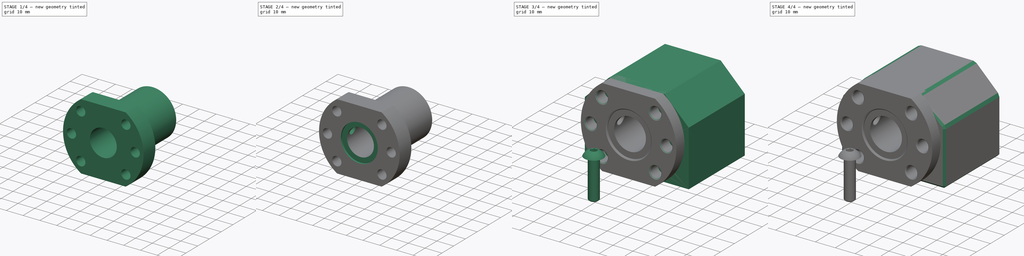
[diagram: build sequence overview — one tinted view per stage of 4, left to right]
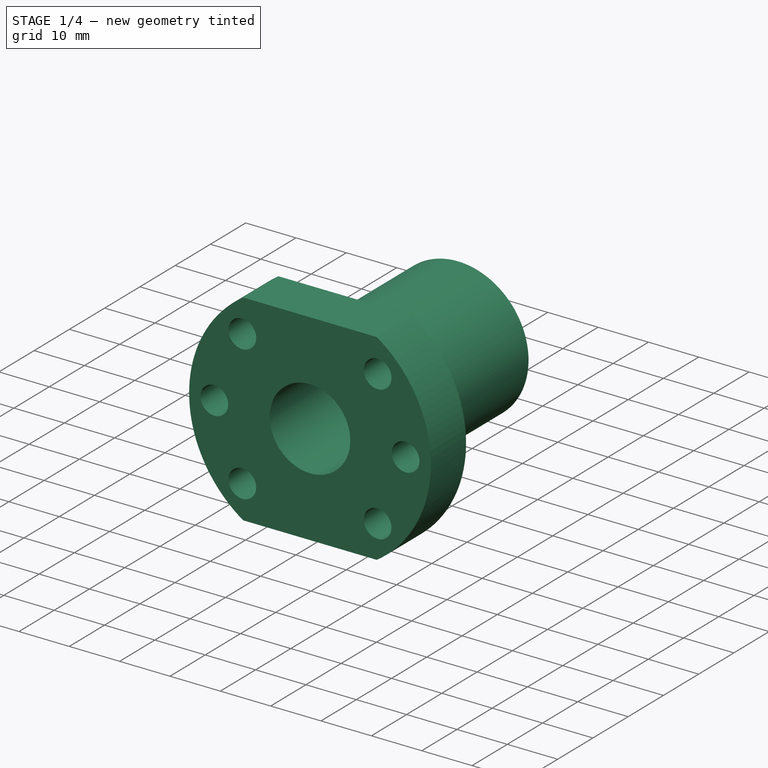
[diagram: stage 1 of 4 — iso view after this stage's code; geometry added in this stage tinted green]
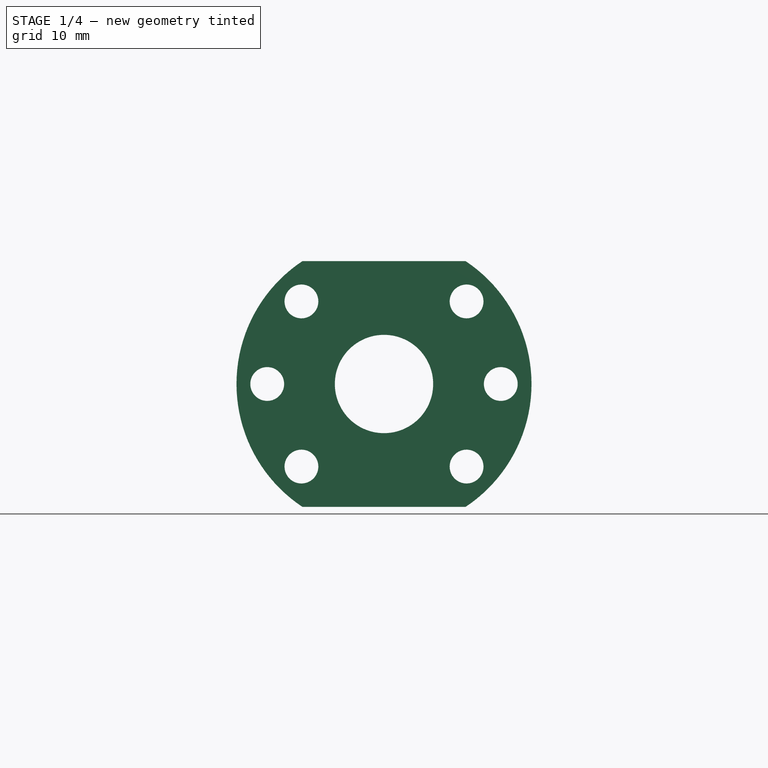
[diagram: stage 1 of 4 — front view after this stage's code; geometry added in this stage tinted green]
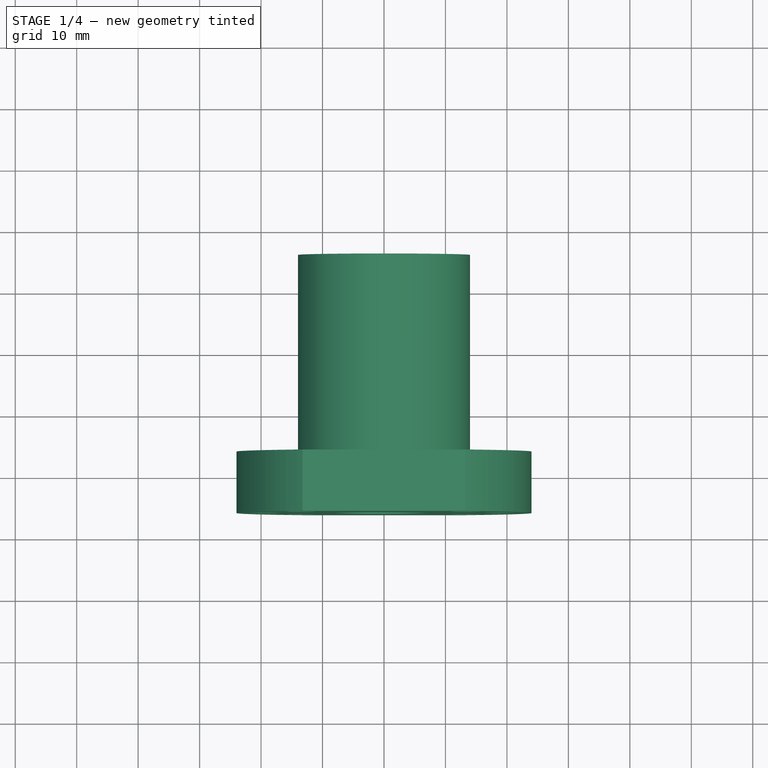
[diagram: stage 1 of 4 — top view after this stage's code; geometry added in this stage tinted green]
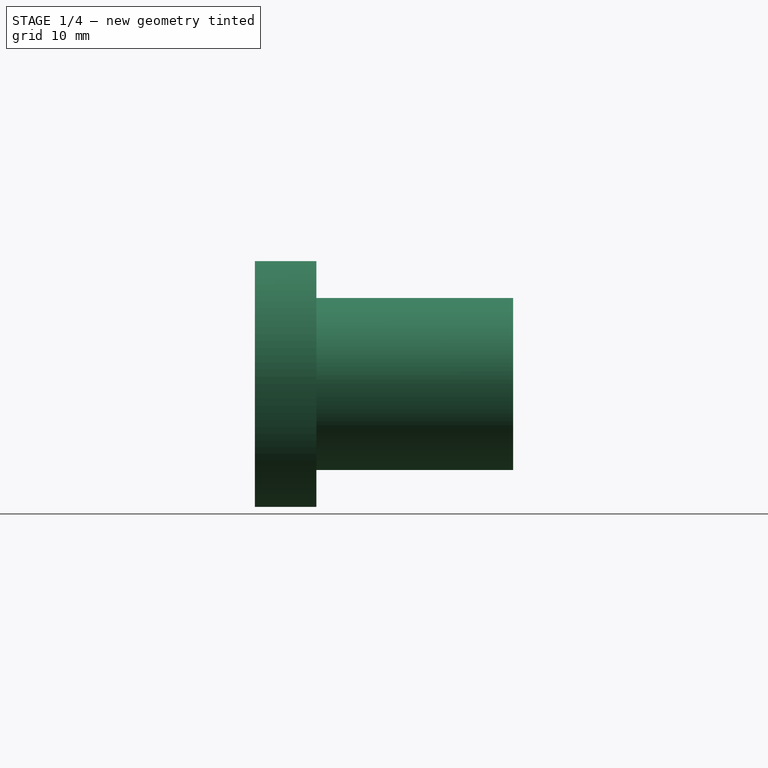
[diagram: stage 1 of 4 — right view after this stage's code; geometry added in this stage tinted green]
FCSTD DOCUMENT  (FreeCAD 2021.614R24301 +3747 (Git))
Label: BallNut
License: Creative Commons Attribution
LicenseURL: http://creativecommons.org/licenses/by/4.0/
objects: App::FeaturePython×25, Part::FeaturePython×22, Sketcher::SketchObject×9, PartDesign::Pocket×6, App::LinkElement×6, PartDesign::Pad×3, App::Link×3, PartDesign::Chamfer×2, PartDesign::Body×2, PartDesign::Plane×1, PartDesign::Line×1, App::DocumentObjectGroup×1
note: 67 computed .brp shape members not serialized (recipe doc carries the construction recipe); baked Part::Feature solids carry a one-line shape summary decoded from their .brp

FEATURE [Sketcher::SketchObject] Sketch003
  FullyConstrained = true
  MapMode = 5
  Placement = pos=(0,0,0) rot=(1,0,0;1.5708rad)
  Support = -> [XZ_Plane001]
  sketch-geometry (1):
    g0: Circle CenterX=0 CenterY=0 CenterZ=0 NormalX=0 NormalY=0 NormalZ=1 AngleXU=0 Radius=14
  constraints (2):
    c: Coincident(g0,g-1)
    c: Diameter(g0) = 28
FEATURE [PartDesign::Pad] Pad001
  ClaimChildren = false
  Direction = (1,1,1)
  Fit = 0
  FitJoin = 0
  InnerFit = 0
  InnerFitJoin = 0
  InnerTaperAngle = 0
  InnerTaperAngleRev = 0
  Length = 32
  Length2 = 100
  Linearize = true
  Midplane = true
  NewSolid = false
  Placement = pos=(0,0,0) rot=(1,0,0;1.5708rad)
  Profile = -> Sketch003
  Refine = true
  Suppress = false
  Type = 0
FEATURE [Sketcher::SketchObject] Sketch004
  FullyConstrained = true
  MapMode = 5
  Placement = pos=(0,-16,3.5e-15) rot=(1,0,0;1.5708rad)
  Support = -> [Pad001]
  sketch-geometry (12):
    g0: ArcOfCircle CenterX=0 CenterY=0 CenterZ=0 NormalX=0 NormalY=0 NormalZ=1 AngleXU=0 Radius=24 StartAngle=2.15648 EndAngle=4.1267
    g1: Circle [constr] CenterX=0 CenterY=0 CenterZ=0 NormalX=0 NormalY=0 NormalZ=1 AngleXU=0 Radius=19
    g2: LineSegment StartX=-13.2665 StartY=20 StartZ=0 EndX=13.2665 EndY=20 EndZ=0
    g3: LineSegment StartX=-13.2665 StartY=-20 StartZ=0 EndX=13.2665 EndY=-20 EndZ=0
    g4: ArcOfCircle CenterX=0 CenterY=0 CenterZ=0 NormalX=0 NormalY=0 NormalZ=1 AngleXU=0 Radius=24 StartAngle=5.29807 EndAngle=7.2683
    g5: Circle CenterX=-19 CenterY=0 CenterZ=0 NormalX=0 NormalY=0 NormalZ=1 AngleXU=0 Radius=2.75
    g6: Circle CenterX=-13.435 CenterY=13.435 CenterZ=0 NormalX=0 NormalY=0 NormalZ=1 AngleXU=0 Radius=2.75
    g7: Circle CenterX=13.435 CenterY=13.435 CenterZ=0 NormalX=0 NormalY=0 NormalZ=1 AngleXU=0 Radius=2.75
    g8: Circle CenterX=19 CenterY=0 CenterZ=0 NormalX=0 NormalY=0 NormalZ=1 AngleXU=0 Radius=2.75
    g9: Circle CenterX=13.435 CenterY=-13.435 CenterZ=0 NormalX=0 NormalY=0 NormalZ=1 AngleXU=0 Radius=2.75
    g10: Circle CenterX=-13.435 CenterY=-13.435 CenterZ=0 NormalX=0 NormalY=0 NormalZ=1 AngleXU=0 Radius=2.75
    g11: LineSegment [constr] StartX=0 StartY=0 StartZ=0 EndX=13.435 EndY=13.435 EndZ=0
  constraints (34):
    c: Coincident(g0,g-1)
    c: Coincident(g1,g0)
    c: Diameter(g1) = 38
    c: Diameter(g0) = 48
    c: Horizontal(g2)
    c: Horizontal(g3)
    c: Symmetric(g3,g2,g0)
    c: DistanceY(g3,g2) = 40
    c: Coincident(g0,g2)
    c: Coincident(g4,g2)
    c: Equal(g0,g4)
    c: Coincident(g0,g3)
    c: PointOnObject(g4,g3)
    c: Coincident(g0,g4)
    c: PointOnObject(g5,g1)
    c: PointOnObject(g6,g1)
    c: PointOnObject(g7,g1)
    c: PointOnObject(g8,g1)
    c: PointOnObject(g9,g1)
    c: PointOnObject(g8,g-1)
    c: PointOnObject(g5,g-1)
    c: PointOnObject(g10,g1)
    c: Vertical(g10,g6)
    c: Vertical(g7,g9)
    c: Horizontal(g7,g6)
    c: Equal(g7,g8)
    c: Equal(g8,g9)
    c: Equal(g9,g6)
    c: Equal(g6,g5)
    c: Equal(g5,g10)
    c: Diameter(g6) = 5.5
    c: Coincident(g11,g0)
    c: Coincident(g11,g7)
    c: Angle(g-1,g11) = 0.785398
FEATURE [PartDesign::Pad] Pad002
  BaseFeature = -> Pad001
  ClaimChildren = false
  Direction = (1,1,1)
  Fit = 0
  FitJoin = 0
  InnerFit = 0
  InnerFitJoin = 0
  InnerTaperAngle = 0
  InnerTaperAngleRev = 0
  Length = 10
  Length2 = 100
  Linearize = true
  NewSolid = false
  Placement = pos=(0,0,0) rot=(1,0,0;1.5708rad)
  Profile = -> Sketch004
  Refine = true
  Suppress = false
  Type = 0
FEATURE [Sketcher::SketchObject] Sketch005
  FullyConstrained = true
  MapMode = 5
  Placement = pos=(0,-26,2.03e-14) rot=(1,0,0;1.5708rad)
  Support = -> [Pad002]
  sketch-geometry (1):
    g0: Circle CenterX=0 CenterY=0 CenterZ=0 NormalX=0 NormalY=0 NormalZ=1 AngleXU=0 Radius=8
  constraints (2):
    c: Coincident(g0,g-1)
    c: Diameter(g0) = 16
FEATURE [PartDesign::Pocket] Pocket002
  BaseFeature = -> Pad002
  ClaimChildren = false
  Fit = 0
  FitJoin = 0
  InnerFit = 0
  InnerFitJoin = 0
  InnerTaperAngle = 0
  InnerTaperAngleRev = 0
  Length = 5
  Length2 = 100
  Linearize = true
  NewSolid = false
  Placement = pos=(0,0,0) rot=(1,0,0;1.5708rad)
  Profile = -> Sketch005
  Refine = true
  Suppress = false
  Type = 1
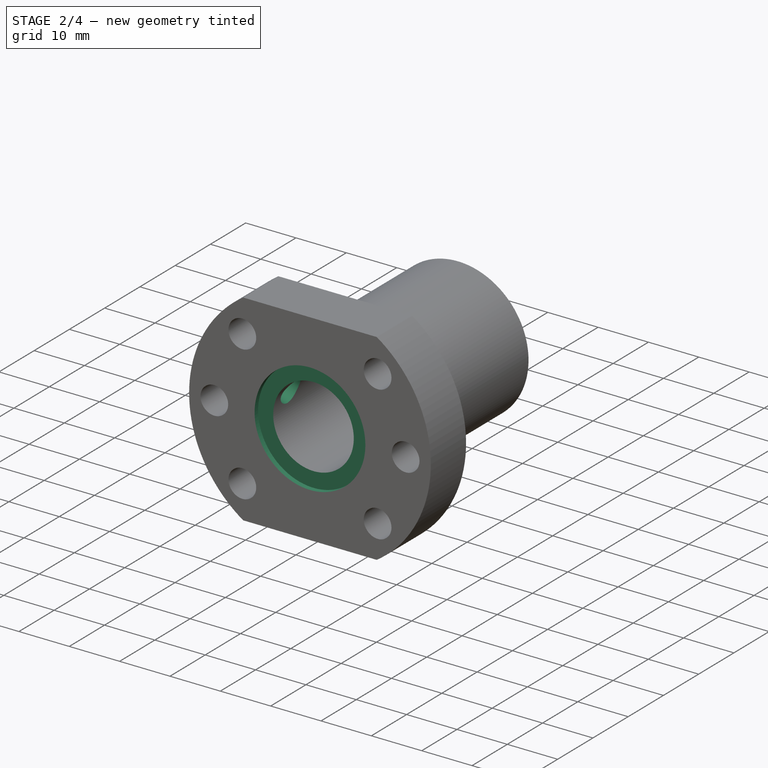
[diagram: stage 2 of 4 — iso view after this stage's code; geometry added in this stage tinted green]
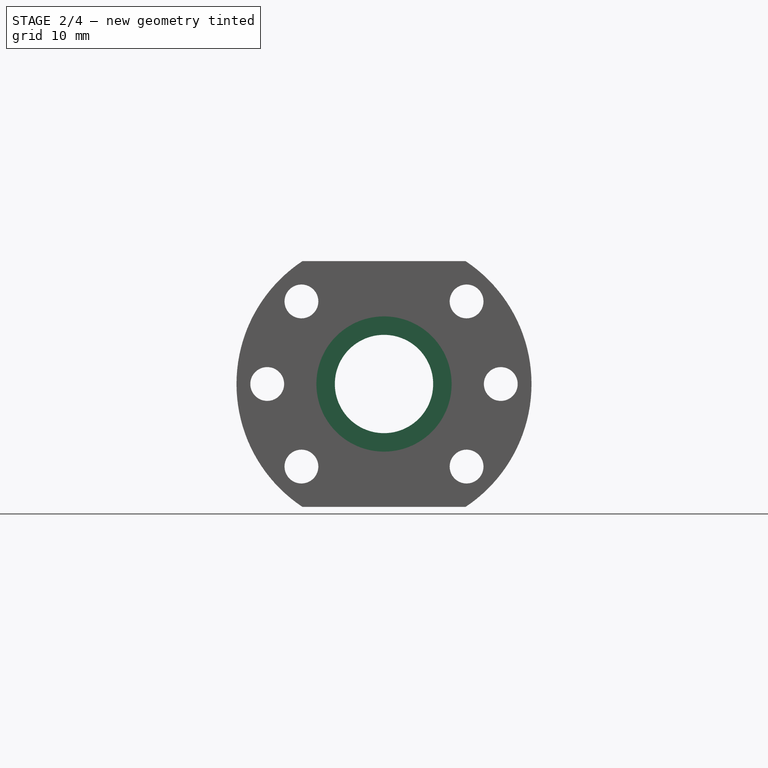
[diagram: stage 2 of 4 — front view after this stage's code; geometry added in this stage tinted green]
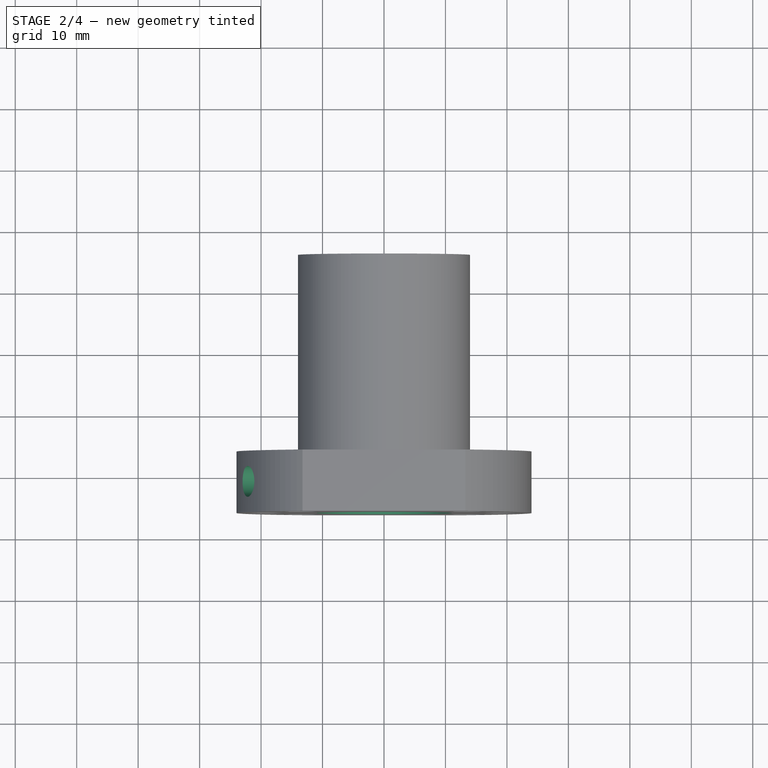
[diagram: stage 2 of 4 — top view after this stage's code; geometry added in this stage tinted green]
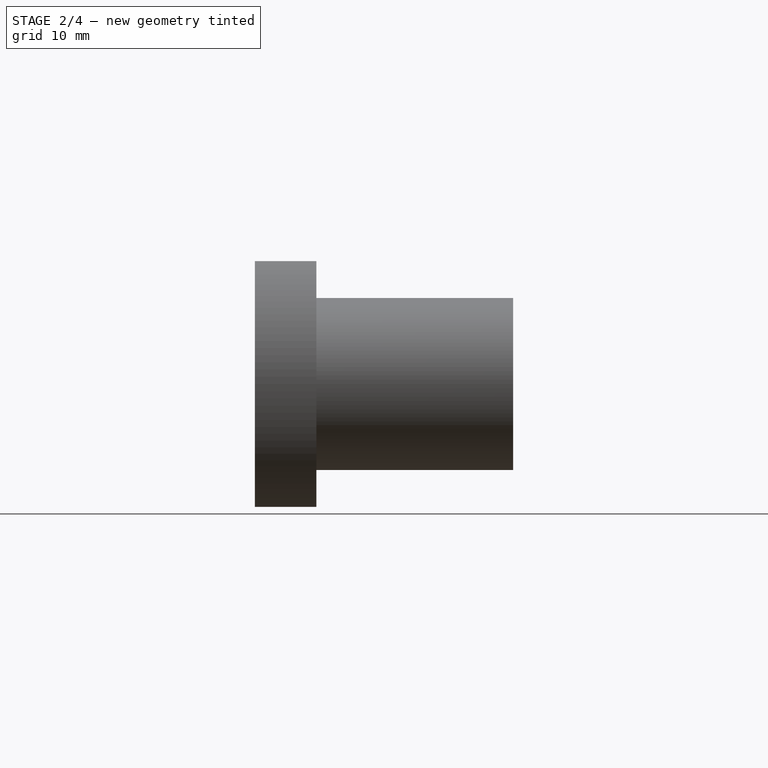
[diagram: stage 2 of 4 — right view after this stage's code; geometry added in this stage tinted green]
FEATURE [Sketcher::SketchObject] Sketch006
  FullyConstrained = true
  MapMode = 5
  Placement = pos=(0,-26,2.03e-14) rot=(1,0,0;1.5708rad)
  Support = -> [Pocket002]
  sketch-geometry (1):
    g0: Circle CenterX=0 CenterY=0 CenterZ=0 NormalX=0 NormalY=0 NormalZ=1 AngleXU=0 Radius=11
  constraints (2):
    c: Coincident(g0,g-1)
    c: Diameter(g0) = 22
FEATURE [PartDesign::Pocket] Pocket003
  BaseFeature = -> Pocket002
  ClaimChildren = false
  Fit = 0
  FitJoin = 0
  InnerFit = 0
  InnerFitJoin = 0
  InnerTaperAngle = 0
  InnerTaperAngleRev = 0
  Length = 1
  Length2 = 100
  Linearize = true
  NewSolid = false
  Placement = pos=(0,0,0) rot=(1,0,0;1.5708rad)
  Profile = -> Sketch006
  Refine = true
  Suppress = false
  Type = 0
FEATURE [Sketcher::SketchObject] Sketch007
  FullyConstrained = true
  MapMode = 5
  Placement = pos=(0,16,-3.5e-15) rot=(-1,0,0;1.5708rad)
  Support = -> [Pocket003]
  sketch-geometry (1):
    g0: Circle CenterX=0 CenterY=0 CenterZ=0 NormalX=0 NormalY=0 NormalZ=1 AngleXU=0 Radius=11
  constraints (2):
    c: Coincident(g0,g-1)
    c: Diameter(g0) = 22
FEATURE [PartDesign::Pocket] Pocket004
  BaseFeature = -> Pocket003
  ClaimChildren = false
  Fit = 0
  FitJoin = 0
  InnerFit = 0
  InnerFitJoin = 0
  InnerTaperAngle = 0
  InnerTaperAngleRev = 0
  Length = 1
  Length2 = 100
  Linearize = true
  NewSolid = false
  Placement = pos=(0,0,0) rot=(1,0,0;1.5708rad)
  Profile = -> Sketch007
  Refine = true
  Suppress = false
  Type = 0
FEATURE [PartDesign::Plane] DatumPlane
  AttachmentOffset = pos=(0,0,0) rot=(1,0,0;0.392699rad)
  Length = 42
  MapMode = 5
  MinimumLength = 10
  MinimumWidth = 10
  Placement = pos=(0,0,0) rot=(0.639338,0.639338,0.427192;2.33414rad)
  ResizeMode = 0
  Support = -> [YZ_Plane001]
  Width = 55.324
FEATURE [Sketcher::SketchObject] Sketch008
  ExternalGeometry = -> [Pocket004]
  FullyConstrained = true
  MapMode = 5
  Placement = pos=(0,0,0) rot=(0.485653,-0.485653,-0.726831;1.88458rad)
  Support = -> [DatumPlane]
  sketch-geometry (3):
    g0: Circle CenterX=21 CenterY=0 CenterZ=0 NormalX=0 NormalY=0 NormalZ=1 AngleXU=0 Radius=2.5
    g1: LineSegment [constr] StartX=16 StartY=13.4007 StartZ=0 EndX=21 EndY=0 EndZ=0
    g2: LineSegment [constr] StartX=21 StartY=0 StartZ=0 EndX=26 EndY=13.4007 EndZ=0
  constraints (7):
    c: PointOnObject(g0,g-1)
    c: Coincident(g1,g-3)
    c: Coincident(g1,g0)
    c: Coincident(g2,g0)
    c: Coincident(g2,g-4)
    c: Equal(g2,g1)
    c: Diameter(g0) = 5
FEATURE [PartDesign::Pocket] Pocket005
  BaseFeature = -> Pocket004
  ClaimChildren = false
  Fit = 0
  FitJoin = 0
  InnerFit = 0
  InnerFitJoin = 0
  InnerTaperAngle = 0
  InnerTaperAngleRev = 0
  Length = 5
  Length2 = 100
  Linearize = true
  NewSolid = false
  Placement = pos=(0,0,0) rot=(1,0,0;1.5708rad)
  Profile = -> Sketch008
  Refine = true
  Reversed = true
  Suppress = false
  Type = 1
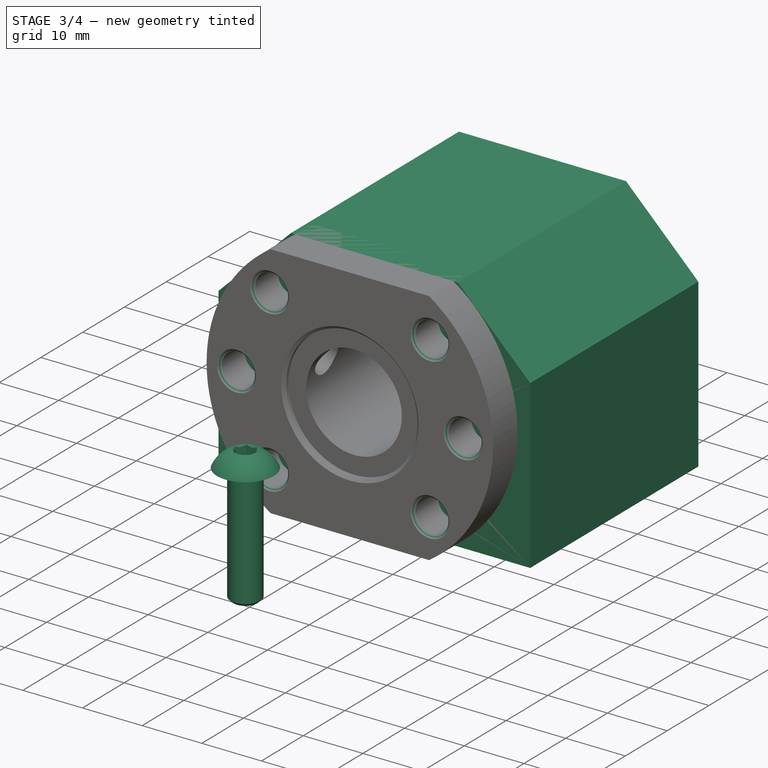
[diagram: stage 3 of 4 — iso view after this stage's code; geometry added in this stage tinted green]
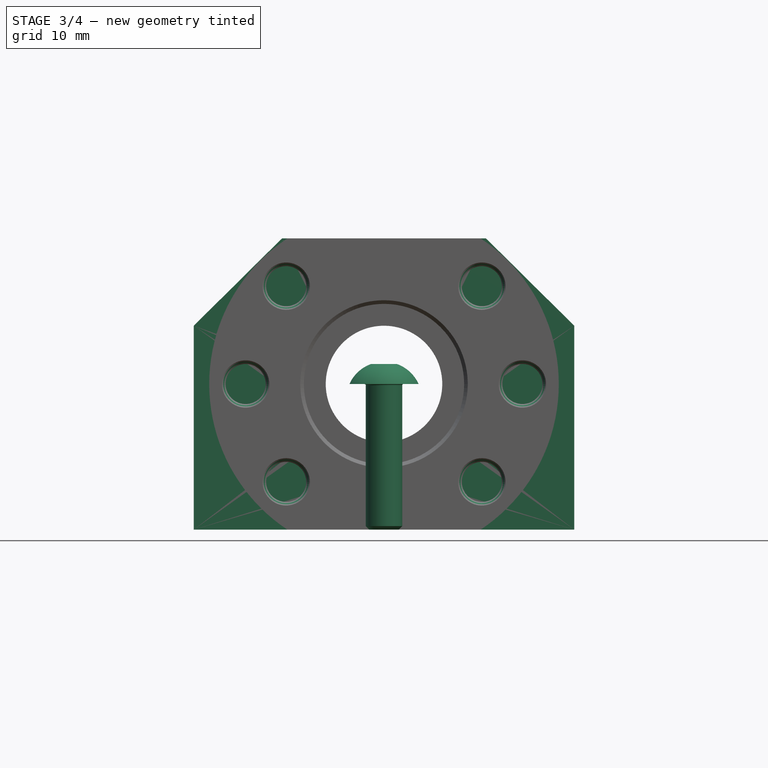
[diagram: stage 3 of 4 — front view after this stage's code; geometry added in this stage tinted green]
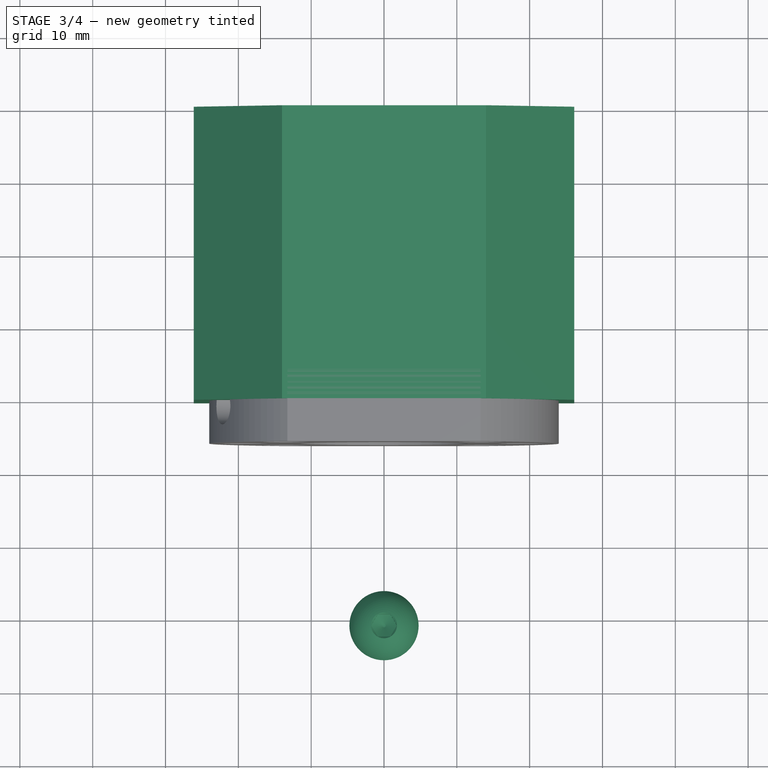
[diagram: stage 3 of 4 — top view after this stage's code; geometry added in this stage tinted green]
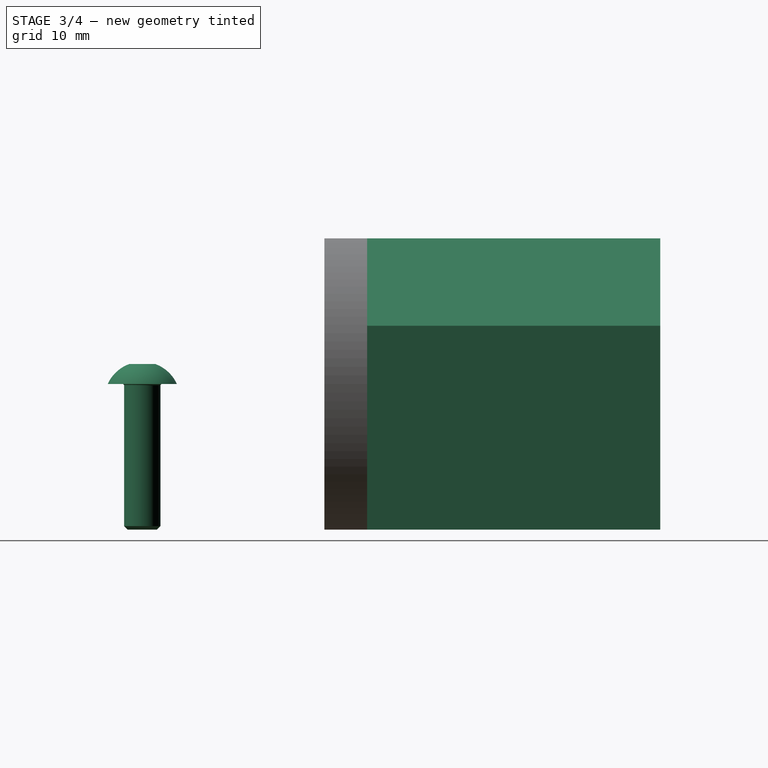
[diagram: stage 3 of 4 — right view after this stage's code; geometry added in this stage tinted green]
FEATURE [Sketcher::SketchObject] Sketch
  FullyConstrained = true
  MapMode = 5
  Placement = pos=(0,0,0) rot=(1,0,0;1.5708rad)
  Support = -> [XZ_Plane]
  sketch-geometry (9):
    g0: Circle CenterX=0 CenterY=0 CenterZ=0 NormalX=0 NormalY=0 NormalZ=1 AngleXU=0 Radius=14
    g1: LineSegment StartX=-26.125 StartY=-20 StartZ=0 EndX=26.125 EndY=-20 EndZ=0
    g2: LineSegment StartX=26.125 StartY=-20 StartZ=0 EndX=26.125 EndY=8 EndZ=0
    g3: LineSegment StartX=26.125 StartY=8 StartZ=0 EndX=14 EndY=20 EndZ=0
    g4: LineSegment StartX=14 StartY=20 StartZ=0 EndX=-14 EndY=20 EndZ=0
    g5: LineSegment StartX=-14 StartY=20 StartZ=0 EndX=-26.125 EndY=8 EndZ=0
    g6: LineSegment StartX=-26.125 StartY=8 StartZ=0 EndX=-26.125 EndY=-20 EndZ=0
    g7: GeomPoint [constr] X=0 Y=-20 Z=0
    g8: GeomPoint [constr] X=2e-16 Y=20 Z=0
  constraints (21):
    c: Coincident(g0,g-1)
    c: Horizontal(g1)
    c: Coincident(g1,g2)
    c: Vertical(g2)
    c: Coincident(g2,g3)
    c: Coincident(g3,g4)
    c: Horizontal(g4)
    c: Coincident(g4,g5)
    c: Coincident(g5,g6)
    c: Coincident(g6,g1)
    c: Vertical(g6)
    c: Horizontal(g5,g2)
    c: PointOnObject(g7,g-2)
    c: Symmetric(g4,g3,g8)
    c: Symmetric(g1,g1,g7)
    c: DistanceY(g1,g3) = 40
    c: Symmetric(g8,g7,g0)
    c: DistanceX(g1,g1) = 52.25
    c: DistanceY(g2,g2) = 28
    c: DistanceX(g4,g4) = 28
    c: Diameter(g0) = 28
FEATURE [PartDesign::Pad] Pad
  ClaimChildren = false
  Direction = (1,1,1)
  Fit = 0
  FitJoin = 0
  InnerFit = 0
  InnerFitJoin = 0
  InnerTaperAngle = 0
  InnerTaperAngleRev = 0
  Length = 40.25
  Length2 = 100
  Linearize = true
  Midplane = true
  NewSolid = false
  Placement = pos=(0,0,0) rot=(1,0,0;1.5708rad)
  Profile = -> Sketch
  Refine = true
  Suppress = false
  Type = 0
FEATURE [PartDesign::Chamfer] Chamfer001
  Angle = 45
  Base = -> Pocket005 [Edge35,Edge43,Edge24,Edge25,Edge26,Edge22,Edge21,Edge20,Edge23,Edge14,Edge16,Edge17,Edge11,Edge12,Edge13]
  BaseFeature = -> Pocket005
  ChamferType = 0
  FlipDirection = false
  NewSolid = false
  Placement = pos=(0,0,0) rot=(1,0,0;1.5708rad)
  Refine = true
  Size = 0.5
  Size2 = 1
  SupportTransform = false
  Suppress = false
FEATURE [PartDesign::Body] Body001  label="SFU1605"
  AutoGroupSolids = false
  ExportMode = 0
  Group = -> [Sketch003,Pad001,Sketch004,Pad002,Sketch005,Pocket002,Sketch006,Pocket003,Sketch007,Pocket004,DatumPlane,Sketch008,Pocket005,Chamfer001]
  Origin = -> Origin001
  Placement = pos=(0,-5,0) rot=(0,0,1;0rad)
  Tip = -> Chamfer001
  _ExportChildren = -> [Pad001,Pad002,Pocket002,Pocket003,Pocket004,DatumPlane,Pocket005,Chamfer001]
  _GroupVersion = 1
FEATURE [App::Link] Link  label="Link(SFU1605)"
  AutoLinkLabel = true
  LinkPlacement = pos=(4e-16,-5,-2.7e-15) rot=(0,0,1;0rad)
  LinkedObject = -> Body001
  Placement = pos=(4e-16,-5,-2.7e-15) rot=(0,0,1;0rad)
  SyncGroupVisibility = false
  _LinkVersion = 1
FEATURE [App::Link] Link001  label="Link001(DSG16)"
  AutoLinkLabel = true
  LinkPlacement = pos=(0,-0.875,-9.7e-15) rot=(0,0,1;0rad)
  LinkedObject = -> Body
  Placement = pos=(0,-0.875,-9.7e-15) rot=(0,0,1;0rad)
  SyncGroupVisibility = false
  _LinkVersion = 1
FEATURE [PartDesign::Line] DatumLine
  AttacherType = Attacher::AttachEngineLine
  Length = 40.25
  MapMode = 19
  MinimumLength = 10
  Placement = pos=(0,-19.125,4e-15) rot=(1,0,0;1.5708rad)
  ResizeMode = 0
  Support = -> [Chamfer]
FEATURE [PartDesign::Body] Body  label="DSG16"
  AutoGroupSolids = false
  ExportMode = 0
  Group = -> [Sketch,Pad,Sketch001,Pocket,Sketch002,Pocket001,Chamfer,DatumLine]
  Origin = -> Origin
  Tip = -> Chamfer
  _ExportChildren = -> [Pad,Pocket,Pocket001,Chamfer,DatumLine]
  _GroupVersion = 1
FEATURE [Part::FeaturePython] Screw  label="M5x20-Screw"  # Fasteners workbench fastener (typed FeaturePython)
  Placement = pos=(0,-51,0) rot=(0,0,1;0rad)
  diameter = 3
  invert = false
  length = 5
  lengthCustom = 20
  matchOuter = false
  offset = 0
  thread = false
  type = 39
FEATURE [App::DocumentObjectGroup] Group  label="Components"
  ExportMode = 1
  Group = -> [Body,Body001,Screw]
  _GroupVersion = 1
FEATURE [App::LinkElement] Link002_i0
  LinkPlacement = pos=(-13.435,20,13.435) rot=(1,0,0;1.5708rad)
  LinkedObject = -> Screw
  Placement = pos=(-13.435,20,13.435) rot=(1,0,0;1.5708rad)
  _LinkVersion = 0
FEATURE [App::LinkElement] Link002_i1
  LinkPlacement = pos=(13.435,20,13.435) rot=(1,0,0;1.5708rad)
  LinkedObject = -> Screw
  Placement = pos=(13.435,20,13.435) rot=(1,0,0;1.5708rad)
  _LinkVersion = 0
FEATURE [App::LinkElement] Link002_i2
  LinkPlacement = pos=(19,20,6.78e-14) rot=(1,0,0;1.5708rad)
  LinkedObject = -> Screw
  Placement = pos=(19,20,6.78e-14) rot=(1,0,0;1.5708rad)
  _LinkVersion = 0
FEATURE [App::LinkElement] Link002_i3
  LinkPlacement = pos=(13.435,20,-13.435) rot=(1,0,0;1.5708rad)
  LinkedObject = -> Screw
  Placement = pos=(13.435,20,-13.435) rot=(1,0,0;1.5708rad)
  _LinkVersion = 0
FEATURE [App::LinkElement] Link002_i4
  LinkPlacement = pos=(-19,20,6.78e-14) rot=(1,0,0;1.5708rad)
  LinkedObject = -> Screw
  Placement = pos=(-19,20,6.78e-14) rot=(1,0,0;1.5708rad)
  _LinkVersion = 0
FEATURE [App::LinkElement] Link002_i5
  LinkPlacement = pos=(-13.435,20,-13.435) rot=(1,0,0;1.5708rad)
  LinkedObject = -> Screw
  Placement = pos=(-13.435,20,-13.435) rot=(1,0,0;1.5708rad)
  _LinkVersion = 0
FEATURE [App::Link] Link002  label="M5x20-Screw 6ct"
  AutoLinkLabel = true
  ElementCount = 6
  ElementList = -> [Link002_i0,Link002_i1,Link002_i2,Link002_i3,Link002_i4,Link002_i5]
  LinkPlacement = pos=(0,-51,0) rot=(0,0,1;0rad)
  LinkedObject = -> Screw
  Placement = pos=(0,-51,0) rot=(0,0,1;0rad)
  SyncGroupVisibility = false
  _LinkVersion = 1
FEATURE [Part::FeaturePython] Parts  # WARN: FeaturePython — macro-defined, semantics opaque (R4)
  Group = -> [Link,Link001,Link002]
  GroupMode = 0
  _LinkVersion = 1
FEATURE [Part::FeaturePython] Assembly  label="NUT Assembly"  # WARN: FeaturePython — macro-defined, semantics opaque (R4)
  AutoRelax = true
  BuildShape = 0
  Freeze = false
  Group = -> [Constraints,Elements,Parts]
  Verbose = false
  _LinkVersion = 1
  _SolverType = 1
  _Version = 1
FEATURE [App::FeaturePython] Constraints  # WARN: FeaturePython — macro-defined, semantics opaque (R4)
  Group = -> [Constraint006,Constraint007,Constraint,Constraint008,Constraint009,Constraint010,Constraint011,Constraint012]
  _LinkVersion = 1
  _Version = 1
FEATURE [App::FeaturePython] Elements  # WARN: FeaturePython — macro-defined, semantics opaque (R4)
  Group = -> [_Element012,_Element013,_Element014,Element,Element001,Element002,Element003,_Element,_Element015,_Element016,_Element017,_Element018,_Element019,_Element020,_Element021,_Element022,_Element023,_Element024,_Element025]
  _LinkVersion = 1
FEATURE [App::FeaturePython] Constraint006  label="Attachment006"  # WARN: FeaturePython — macro-defined, semantics opaque (R4)
  Cascade = false
  Disabled = false
  Group = -> [ElementLink012,ElementLink013]
  Multiply = false
  _ConstraintType = 45
  _LinkVersion = 1
  _Parent = -> Constraints
FEATURE [App::FeaturePython] ElementLink012  label="_Element012"  # link proxy (typed FeaturePython)
  LinkTransform = true
  LinkedObject = -> _Element012
  _LinkVersion = 1
  _Parent = -> Constraint006
FEATURE [Part::FeaturePython] _Element012  # link proxy (typed FeaturePython)
  Detach = false
  LinkTransform = true
  LinkedObject = -> Link001 [Chamfer.Edge58]
  _LinkVersion = 1
  _Parent = -> Elements
FEATURE [App::FeaturePython] ElementLink013  label="Nut-mate"  # link proxy (typed FeaturePython)
  LinkTransform = true
  LinkedObject = -> _Element013
  _LinkVersion = 1
  _Parent = -> Constraint006
FEATURE [Part::FeaturePython] _Element013  label="Nut-mate"  # link proxy (typed FeaturePython)
  Detach = false
  LinkTransform = true
  LinkedObject = -> Link [Chamfer001.Edge6]
  _LinkVersion = 1
  _Parent = -> Elements
FEATURE [App::FeaturePython] Constraint007  label="Locked"  # WARN: FeaturePython — macro-defined, semantics opaque (R4)
  Disabled = false
  Group = -> [ElementLink014]
  _ConstraintType = 0
  _LinkVersion = 1
  _Parent = -> Constraints
FEATURE [App::FeaturePython] ElementLink014  label="_Element014"  # link proxy (typed FeaturePython)
  LinkTransform = true
  LinkedObject = -> _Element014
  _LinkVersion = 1
  _Parent = -> Constraint007
FEATURE [Part::FeaturePython] _Element014  # link proxy (typed FeaturePython)
  Detach = false
  LinkTransform = true
  LinkedObject = -> Link001 [Chamfer.Face1]
  _LinkVersion = 1
  _Parent = -> Elements
FEATURE [Part::FeaturePython] Element  label="gov-mate"  # link proxy (typed FeaturePython)
  Detach = false
  LinkTransform = true
  LinkedObject = -> Link001 [Chamfer.Edge7]
  _LinkVersion = 1
  _Parent = -> Elements
FEATURE [Part::FeaturePython] Element001  label="Axis"  # link proxy (typed FeaturePython)
  Detach = false
  LinkTransform = true
  LinkedObject = -> Link001 [DatumLine.]
  _LinkVersion = 1
  _Parent = -> Elements
FEATURE [Part::FeaturePython] Element002  label="gov-mate-r"  # link proxy (typed FeaturePython)
  Detach = false
  LinkTransform = true
  LinkedObject = -> Link001 [Chamfer.Edge5]
  _LinkVersion = 1
  _Parent = -> Elements
FEATURE [Part::FeaturePython] Element003  label="shim-mate"  # link proxy (typed FeaturePython)
  Detach = false
  LinkTransform = true
  LinkedObject = -> Link001 [Chamfer.Edge8]
  _LinkVersion = 1
  _Parent = -> Elements
FEATURE [App::FeaturePython] Constraint  label="Attachment"  # WARN: FeaturePython — macro-defined, semantics opaque (R4)
  Cascade = false
  Disabled = false
  Group = -> [ElementLink,ElementLink015]
  Multiply = false
  _ConstraintType = 45
  _LinkVersion = 0
  _Parent = -> Constraints
FEATURE [App::FeaturePython] ElementLink  label="_Element"  # link proxy (typed FeaturePython)
  LinkTransform = true
  LinkedObject = -> _Element
  _LinkVersion = 0
  _Parent = -> Constraint
FEATURE [Part::FeaturePython] _Element  # link proxy (typed FeaturePython)
  Detach = false
  LinkTransform = true
  LinkedObject = -> Link002 [0.Edge4]
  _LinkVersion = 0
  _Parent = -> Elements
FEATURE [App::FeaturePython] ElementLink015  label="_Element015"  # link proxy (typed FeaturePython)
  LinkTransform = true
  LinkedObject = -> _Element015
  _LinkVersion = 0
  _Parent = -> Constraint
FEATURE [Part::FeaturePython] _Element015  # link proxy (typed FeaturePython)
  Detach = false
  LinkTransform = true
  LinkedObject = -> Link [Chamfer001.Edge40]
  _LinkVersion = 0
  _Parent = -> Elements
FEATURE [App::FeaturePython] Constraint008  label="Attachment007"  # WARN: FeaturePython — macro-defined, semantics opaque (R4)
  Cascade = false
  Disabled = false
  Group = -> [ElementLink016,ElementLink017]
  Multiply = false
  _ConstraintType = 45
  _LinkVersion = 0
  _Parent = -> Constraints
FEATURE [App::FeaturePython] ElementLink016  label="_Element016"  # link proxy (typed FeaturePython)
  LinkTransform = true
  LinkedObject = -> _Element016
  _LinkVersion = 0
  _Parent = -> Constraint008
FEATURE [Part::FeaturePython] _Element016  # link proxy (typed FeaturePython)
  Detach = false
  LinkTransform = true
  LinkedObject = -> Link002 [1.Edge4]
  _LinkVersion = 0
  _Parent = -> Elements
FEATURE [App::FeaturePython] ElementLink017  label="_Element017"  # link proxy (typed FeaturePython)
  LinkTransform = true
  LinkedObject = -> _Element017
  _LinkVersion = 0
  _Parent = -> Constraint008
FEATURE [Part::FeaturePython] _Element017  # link proxy (typed FeaturePython)
  Detach = false
  LinkTransform = true
  LinkedObject = -> Link [Chamfer001.Edge39]
  _LinkVersion = 0
  _Parent = -> Elements
FEATURE [App::FeaturePython] Constraint009  label="Attachment008"  # WARN: FeaturePython — macro-defined, semantics opaque (R4)
  Cascade = false
  Disabled = false
  Group = -> [ElementLink018,ElementLink019]
  Multiply = false
  _ConstraintType = 45
  _LinkVersion = 0
  _Parent = -> Constraints
FEATURE [App::FeaturePython] ElementLink018  label="_Element018"  # link proxy (typed FeaturePython)
  LinkTransform = true
  LinkedObject = -> _Element018
  _LinkVersion = 0
  _Parent = -> Constraint009
FEATURE [Part::FeaturePython] _Element018  # link proxy (typed FeaturePython)
  Detach = false
  LinkTransform = true
  LinkedObject = -> Link002 [2.Edge4]
  _LinkVersion = 0
  _Parent = -> Elements
FEATURE [App::FeaturePython] ElementLink019  label="_Element019"  # link proxy (typed FeaturePython)
  LinkTransform = true
  LinkedObject = -> _Element019
  _LinkVersion = 0
  _Parent = -> Constraint009
FEATURE [Part::FeaturePython] _Element019  # link proxy (typed FeaturePython)
  Detach = false
  LinkTransform = true
  LinkedObject = -> Link [Chamfer001.Edge38]
  _LinkVersion = 0
  _Parent = -> Elements
FEATURE [App::FeaturePython] Constraint010  label="Attachment009"  # WARN: FeaturePython — macro-defined, semantics opaque (R4)
  Cascade = false
  Disabled = false
  Group = -> [ElementLink020,ElementLink021]
  Multiply = false
  _ConstraintType = 45
  _LinkVersion = 0
  _Parent = -> Constraints
FEATURE [App::FeaturePython] ElementLink020  label="_Element020"  # link proxy (typed FeaturePython)
  LinkTransform = true
  LinkedObject = -> _Element020
  _LinkVersion = 0
  _Parent = -> Constraint010
FEATURE [Part::FeaturePython] _Element020  # link proxy (typed FeaturePython)
  Detach = false
  LinkTransform = true
  LinkedObject = -> Link002 [3.Edge4]
  _LinkVersion = 0
  _Parent = -> Elements
FEATURE [App::FeaturePython] ElementLink021  label="_Element021"  # link proxy (typed FeaturePython)
  LinkTransform = true
  LinkedObject = -> _Element021
  _LinkVersion = 0
  _Parent = -> Constraint010
FEATURE [Part::FeaturePython] _Element021  # link proxy (typed FeaturePython)
  Detach = false
  LinkTransform = true
  LinkedObject = -> Link [Chamfer001.Edge43]
  _LinkVersion = 0
  _Parent = -> Elements
FEATURE [App::FeaturePython] Constraint011  label="Attachment010"  # WARN: FeaturePython — macro-defined, semantics opaque (R4)
  Cascade = false
  Disabled = false
  Group = -> [ElementLink022,ElementLink023]
  Multiply = false
  _ConstraintType = 45
  _LinkVersion = 0
  _Parent = -> Constraints
FEATURE [App::FeaturePython] ElementLink022  label="_Element022"  # link proxy (typed FeaturePython)
  LinkTransform = true
  LinkedObject = -> _Element022
  _LinkVersion = 0
  _Parent = -> Constraint011
FEATURE [Part::FeaturePython] _Element022  # link proxy (typed FeaturePython)
  Detach = false
  LinkTransform = true
  LinkedObject = -> Link002 [4.Edge4]
  _LinkVersion = 0
  _Parent = -> Elements
FEATURE [App::FeaturePython] ElementLink023  label="_Element023"  # link proxy (typed FeaturePython)
  LinkTransform = true
  LinkedObject = -> _Element023
  _LinkVersion = 0
  _Parent = -> Constraint011
FEATURE [Part::FeaturePython] _Element023  # link proxy (typed FeaturePython)
  Detach = false
  LinkTransform = true
  LinkedObject = -> Link [Chamfer001.Edge41]
  _LinkVersion = 0
  _Parent = -> Elements
FEATURE [App::FeaturePython] Constraint012  label="Attachment011"  # WARN: FeaturePython — macro-defined, semantics opaque (R4)
  Cascade = false
  Disabled = false
  Group = -> [ElementLink024,ElementLink025]
  Multiply = false
  _ConstraintType = 45
  _LinkVersion = 0
  _Parent = -> Constraints
FEATURE [App::FeaturePython] ElementLink024  label="_Element024"  # link proxy (typed FeaturePython)
  LinkTransform = true
  LinkedObject = -> _Element024
  _LinkVersion = 0
  _Parent = -> Constraint012
FEATURE [Part::FeaturePython] _Element024  # link proxy (typed FeaturePython)
  Detach = false
  LinkTransform = true
  LinkedObject = -> Link002 [5.Edge4]
  _LinkVersion = 0
  _Parent = -> Elements
FEATURE [App::FeaturePython] ElementLink025  label="_Element025"  # link proxy (typed FeaturePython)
  LinkTransform = true
  LinkedObject = -> _Element025
  _LinkVersion = 0
  _Parent = -> Constraint012
FEATURE [Part::FeaturePython] _Element025  # link proxy (typed FeaturePython)
  Detach = false
  LinkTransform = true
  LinkedObject = -> Link [Chamfer001.Edge42]
  _LinkVersion = 0
  _Parent = -> Elements
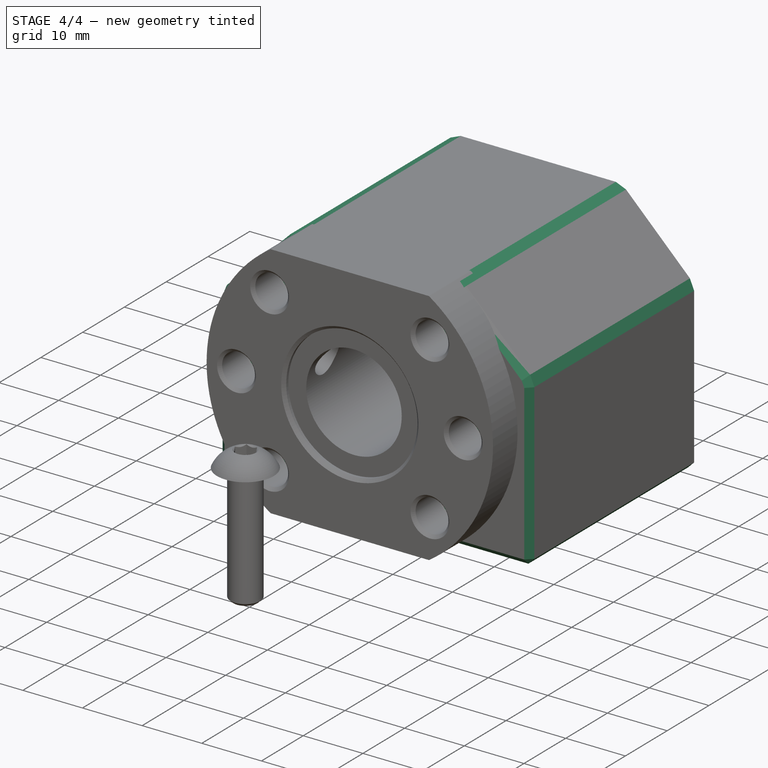
[diagram: stage 4 of 4 — iso view after this stage's code; geometry added in this stage tinted green]
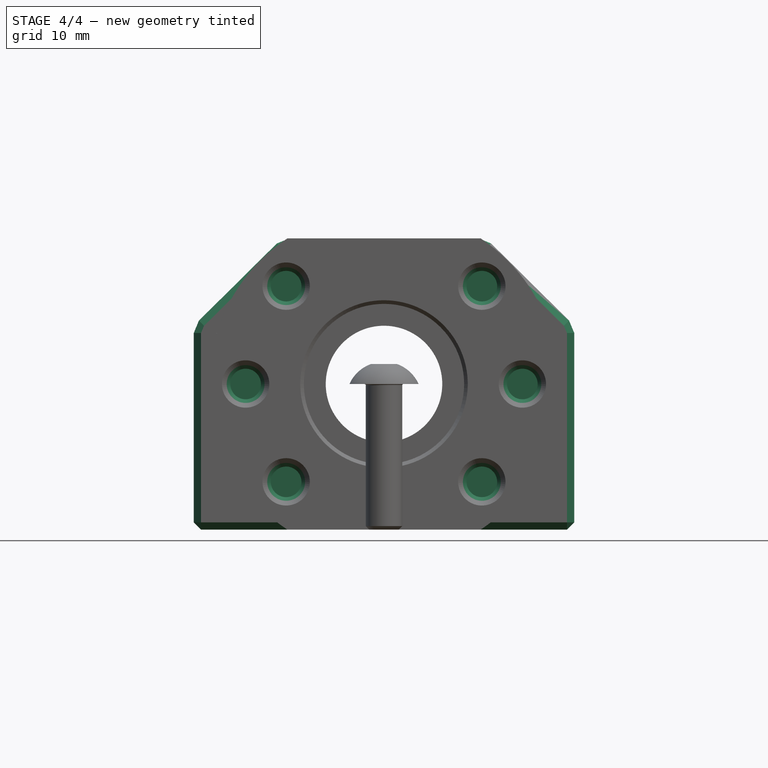
[diagram: stage 4 of 4 — front view after this stage's code; geometry added in this stage tinted green]
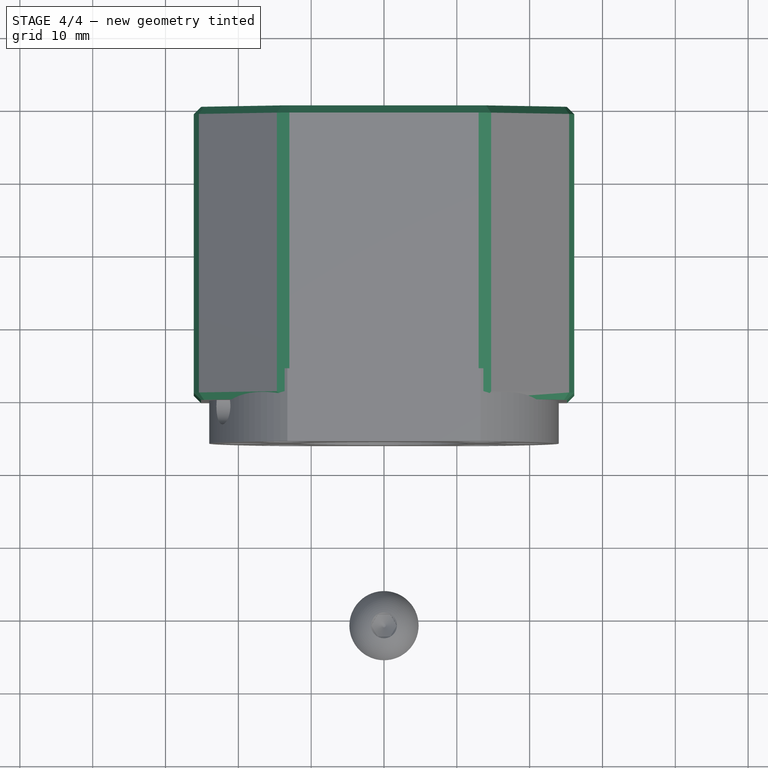
[diagram: stage 4 of 4 — top view after this stage's code; geometry added in this stage tinted green]
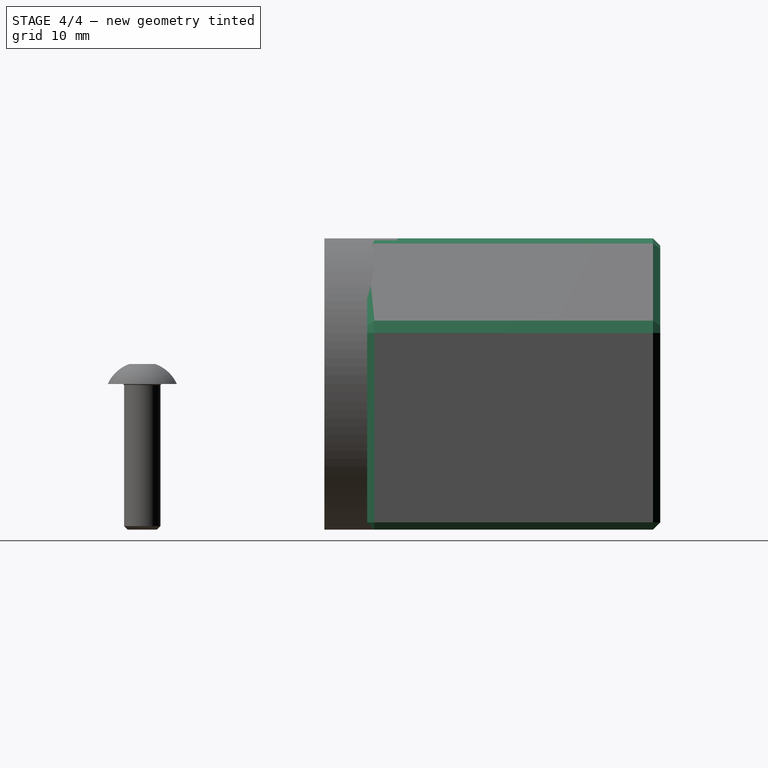
[diagram: stage 4 of 4 — right view after this stage's code; geometry added in this stage tinted green]
FEATURE [Sketcher::SketchObject] Sketch001
  FullyConstrained = true
  MapMode = 5
  Placement = pos=(0,-20.125,4.4e-15) rot=(1,0,0;1.5708rad)
  Support = -> [Pad]
  sketch-geometry (8):
    g0: Circle CenterX=-19 CenterY=0 CenterZ=0 NormalX=0 NormalY=0 NormalZ=1 AngleXU=0 Radius=2.1
    g1: Circle CenterX=19 CenterY=0 CenterZ=0 NormalX=0 NormalY=0 NormalZ=1 AngleXU=0 Radius=2.1
    g2: Circle CenterX=13.435 CenterY=-13.435 CenterZ=0 NormalX=0 NormalY=0 NormalZ=1 AngleXU=0 Radius=2.1
    g3: Circle CenterX=-13.435 CenterY=-13.435 CenterZ=0 NormalX=0 NormalY=0 NormalZ=1 AngleXU=0 Radius=2.1
    g4: Circle CenterX=-13.435 CenterY=13.435 CenterZ=0 NormalX=0 NormalY=0 NormalZ=1 AngleXU=0 Radius=2.1
    g5: Circle CenterX=13.435 CenterY=13.435 CenterZ=0 NormalX=0 NormalY=0 NormalZ=1 AngleXU=0 Radius=2.1
    g6: Circle [constr] CenterX=0 CenterY=0 CenterZ=0 NormalX=0 NormalY=0 NormalZ=1 AngleXU=0 Radius=19
    g7: LineSegment [constr] StartX=0 StartY=0 StartZ=0 EndX=13.435 EndY=13.435 EndZ=0
  constraints (22):
    c: PointOnObject(g0,g-1)
    c: PointOnObject(g1,g-1)
    c: Coincident(g6,g-1)
    c: Diameter(g6) = 38
    c: Equal(g1,g5)
    c: Equal(g5,g4)
    c: Equal(g4,g0)
    c: Equal(g0,g3)
    c: Equal(g3,g2)
    c: PointOnObject(g5,g6)
    c: PointOnObject(g4,g6)
    c: PointOnObject(g0,g6)
    c: PointOnObject(g1,g6)
    c: PointOnObject(g2,g6)
    c: PointOnObject(g3,g6)
    c: Vertical(g4,g3)
    c: Vertical(g5,g2)
    c: Horizontal(g4,g5)
    c: Diameter(g4) = 4.2
    c: Coincident(g7,g6)
    c: Coincident(g7,g5)
    c: Angle(g-1,g7) = 0.785398
FEATURE [PartDesign::Pocket] Pocket
  BaseFeature = -> Pad
  ClaimChildren = false
  Fit = 0
  FitJoin = 0
  InnerFit = 0
  InnerFitJoin = 0
  InnerTaperAngle = 0
  InnerTaperAngleRev = 0
  Length = 16
  Length2 = 100
  Linearize = true
  NewSolid = false
  Placement = pos=(0,0,0) rot=(1,0,0;1.5708rad)
  Profile = -> Sketch001
  Refine = true
  Suppress = false
  Type = 0
FEATURE [Sketcher::SketchObject] Sketch002
  FullyConstrained = true
  MapMode = 5
  Placement = pos=(0,-8.8e-15,-20) rot=(1,0,0;3.14159rad)
  Support = -> [Pocket]
  sketch-geometry (4):
    g0: Circle CenterX=-20 CenterY=12 CenterZ=0 NormalX=0 NormalY=0 NormalZ=1 AngleXU=0 Radius=2.1
    g1: Circle CenterX=20 CenterY=12 CenterZ=0 NormalX=0 NormalY=0 NormalZ=1 AngleXU=0 Radius=2.1
    g2: Circle CenterX=-20 CenterY=-12 CenterZ=0 NormalX=0 NormalY=0 NormalZ=1 AngleXU=0 Radius=2.1
    g3: Circle CenterX=20 CenterY=-12 CenterZ=0 NormalX=0 NormalY=0 NormalZ=1 AngleXU=0 Radius=2.1
  constraints (11):
    c: Equal(g3,g1)
    c: Equal(g1,g0)
    c: Equal(g0,g2)
    c: Diameter(g0) = 4.2
    c: Symmetric(g0,g3,g-1)
    c: Horizontal(g0,g1)
    c: Vertical(g0,g2)
    c: Vertical(g1,g3)
    c: Horizontal(g3,g2)
    c: DistanceY(g2,g0) = 24
    c: DistanceX(g0,g1) = 40
FEATURE [PartDesign::Pocket] Pocket001
  BaseFeature = -> Pocket
  ClaimChildren = false
  Fit = 0
  FitJoin = 0
  InnerFit = 0
  InnerFitJoin = 0
  InnerTaperAngle = 0
  InnerTaperAngleRev = 0
  Length = 16
  Length2 = 100
  Linearize = true
  NewSolid = false
  Placement = pos=(0,0,0) rot=(1,0,0;1.5708rad)
  Profile = -> Sketch002
  Refine = true
  Suppress = false
  Type = 0
FEATURE [PartDesign::Chamfer] Chamfer
  Angle = 45
  Base = -> Pocket001 [Edge10,Edge2,Edge15,Edge14,Edge13,Edge12,Edge37,Edge9,Edge1,Edge4,Edge28,Edge38,Edge16,Edge3,Edge17,Edge19,Edge20,Edge18,Edge11,Edge25,Edge22,Edge21,Edge24,Edge26,Edge27,Edge23,Edge5,Edge7,Edge8,Edge6]
  BaseFeature = -> Pocket001
  ChamferType = 0
  FlipDirection = false
  NewSolid = false
  Placement = pos=(0,0,0) rot=(1,0,0;1.5708rad)
  Refine = true
  Size = 1
  Size2 = 1
  SupportTransform = false
  Suppress = false
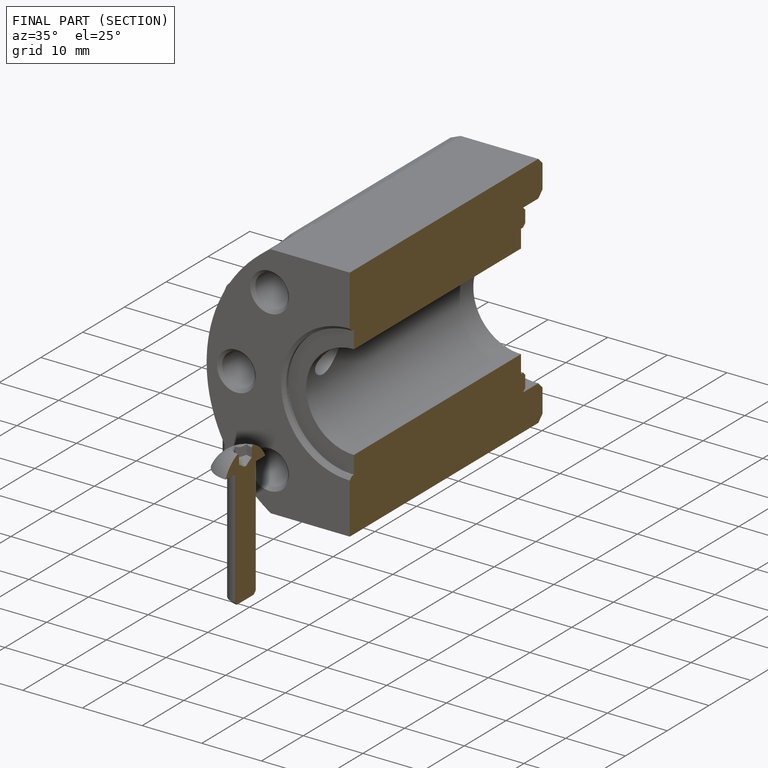
[diagram: finished part — half-section view (interior)]
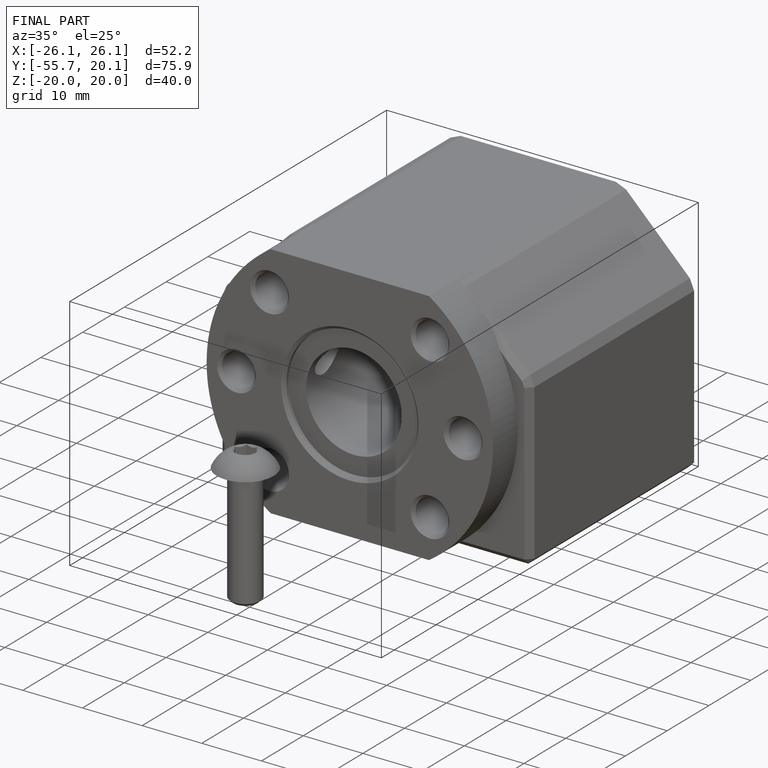
[diagram: finished part — iso view with bounding-box wireframe]
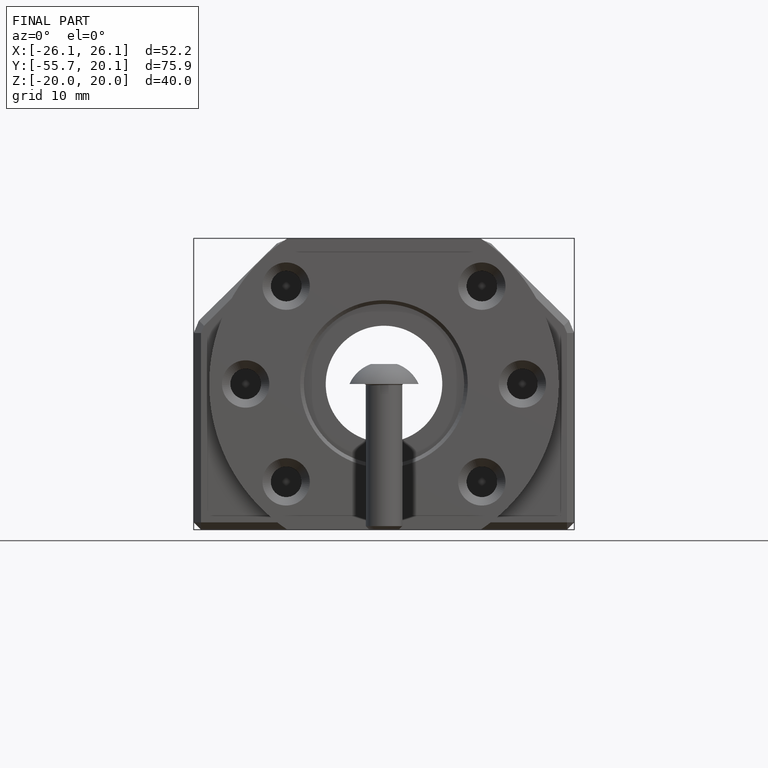
[diagram: finished part — front view with bounding-box wireframe]
